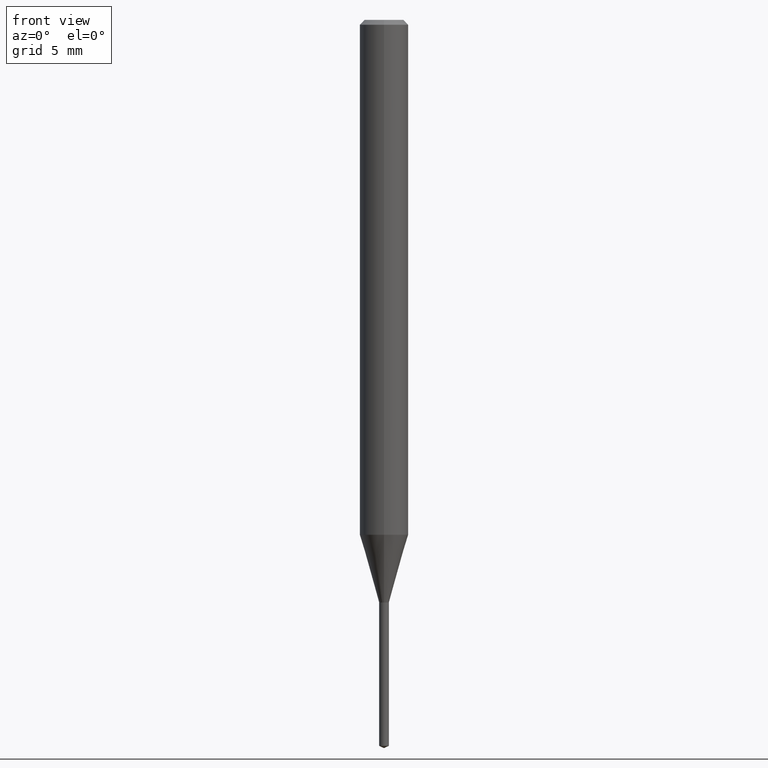
[diagram: clean part render]
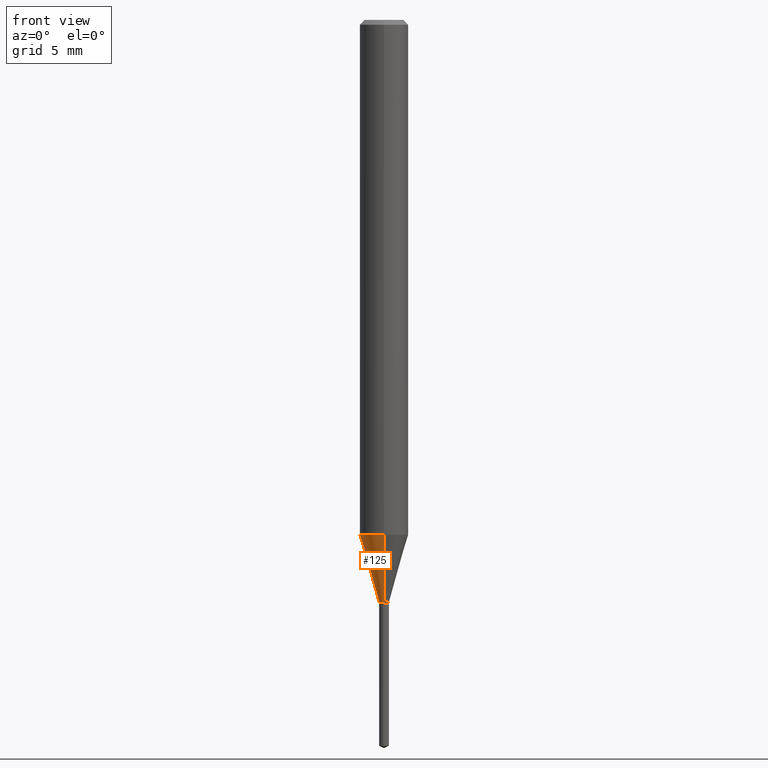
[diagram: same view with one face highlighted and labeled with its STEP entity id]
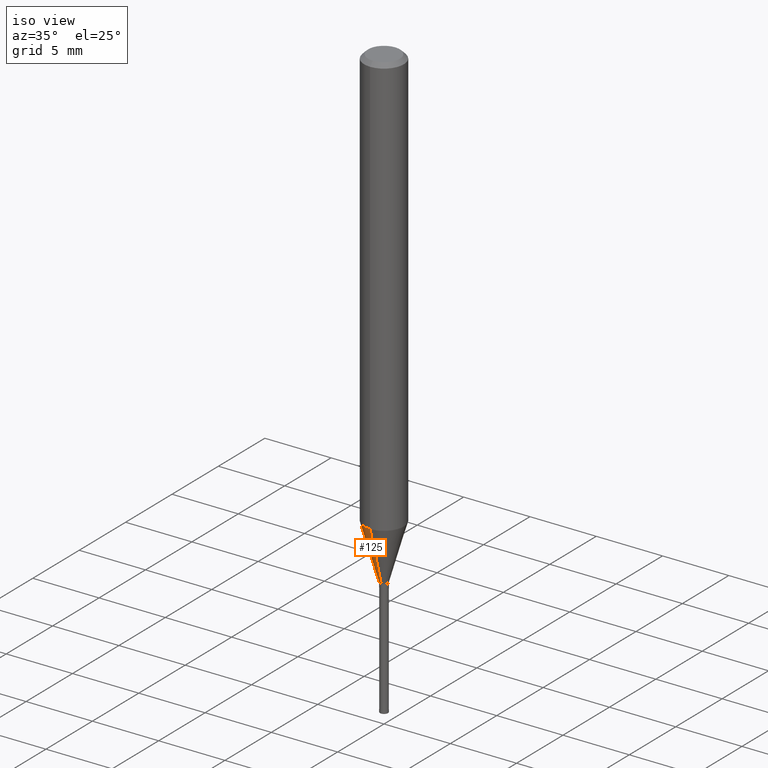
[diagram: same view with one face highlighted and labeled with its STEP entity id]
A machine part, front view. The second image highlights one B-rep face of the part: STEP entity #125.
A second angle (iso view) of the same face is appended — the face is thin or edge-on in the first view.
In plain terms, the highlighted conical surface has half-angle 16.003 deg.
Its self-contained STEP definition (entity closure, byte-faithful):
#91=VERTEX_POINT('',#226);
#93=VERTEX_POINT('',#228);
#107=VERTEX_POINT('',#244);
#125=ADVANCED_FACE('',(#267),#268,.T.);
#129=EDGE_CURVE('',#91,#93,#272,.T.);
#151=EDGE_CURVE('',#107,#163,#296,.T.);
#157=EDGE_CURVE('',#91,#163,#302,.T.);
#163=VERTEX_POINT('',#308);
#171=EDGE_CURVE('',#93,#107,#316,.T.);
#226=CARTESIAN_POINT('',(3.67381906146713E-017,-0.3,-35.9991339745962));
#228=CARTESIAN_POINT('',(1.83690953073357E-016,-1.5,-31.815));
#244=CARTESIAN_POINT('',(0.0,1.5,-31.815));
#267=FACE_OUTER_BOUND('',#415,.T.);
#268=CONICAL_SURFACE('',#416,0.9,0.279301019176269);
#272=LINE('',#422,#423);
#296=LINE('',#457,#458);
#302=CIRCLE('',#467,0.3);
#308=CARTESIAN_POINT('',(0.0,0.3,-35.9991339745962));
#316=CIRCLE('',#485,1.5);
#415=EDGE_LOOP('',(#598,#599,#600,#601));
#416=AXIS2_PLACEMENT_3D('',#602,#603,#604);
#422=CARTESIAN_POINT('',(1.10214571844014E-016,-0.9,-33.9070669872981));
#423=VECTOR('',#608,1.0);
#457=CARTESIAN_POINT('',(-1.10214571844014E-016,0.9,-33.9070669872981));
#458=VECTOR('',#634,1.0);
#467=AXIS2_PLACEMENT_3D('',#636,#637,#638);
#485=AXIS2_PLACEMENT_3D('',#647,#648,#649);
#598=ORIENTED_EDGE('',*,*,#151,.T.);
#599=ORIENTED_EDGE('',*,*,#157,.F.);
#600=ORIENTED_EDGE('',*,*,#129,.T.);
#601=ORIENTED_EDGE('',*,*,#171,.T.);
#602=CARTESIAN_POINT('',(0.0,0.0,-33.9070669872981));
#603=DIRECTION('',(-0.0,-0.0,1.0));
#604=DIRECTION('',(0.0,1.0,0.0));
#608=DIRECTION('',(3.37604159806123E-017,-0.275683821786777,0.961248370820485));
#634=DIRECTION('',(3.37604159806123E-017,-0.275683821786777,-0.961248370820485));
#636=CARTESIAN_POINT('',(0.0,0.0,-35.9991339745962));
#637=DIRECTION('',(0.0,0.0,-1.0));
#638=DIRECTION('',(0.0,1.0,0.0));
#647=CARTESIAN_POINT('',(0.0,0.0,-31.815));
#648=DIRECTION('',(0.0,0.0,-1.0));
#649=DIRECTION('',(0.0,1.0,0.0));